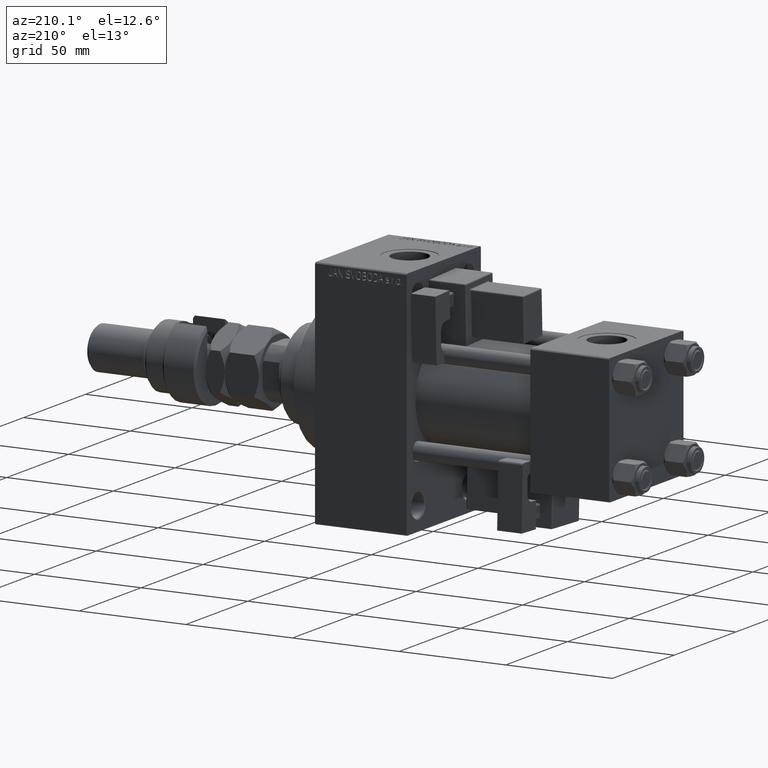
[diagram: clean part render]
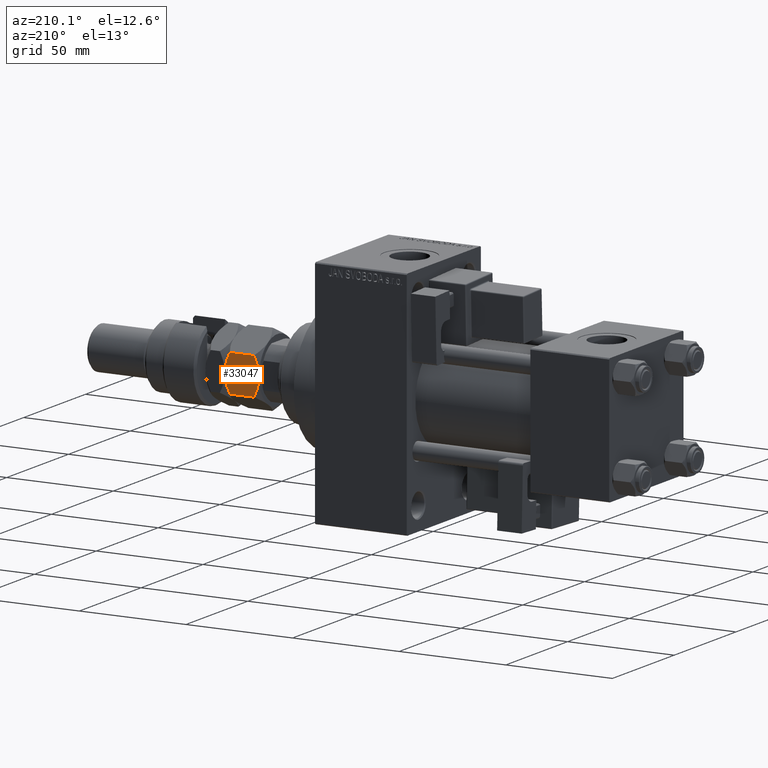
[diagram: same view with one face highlighted and labeled with its STEP entity id]
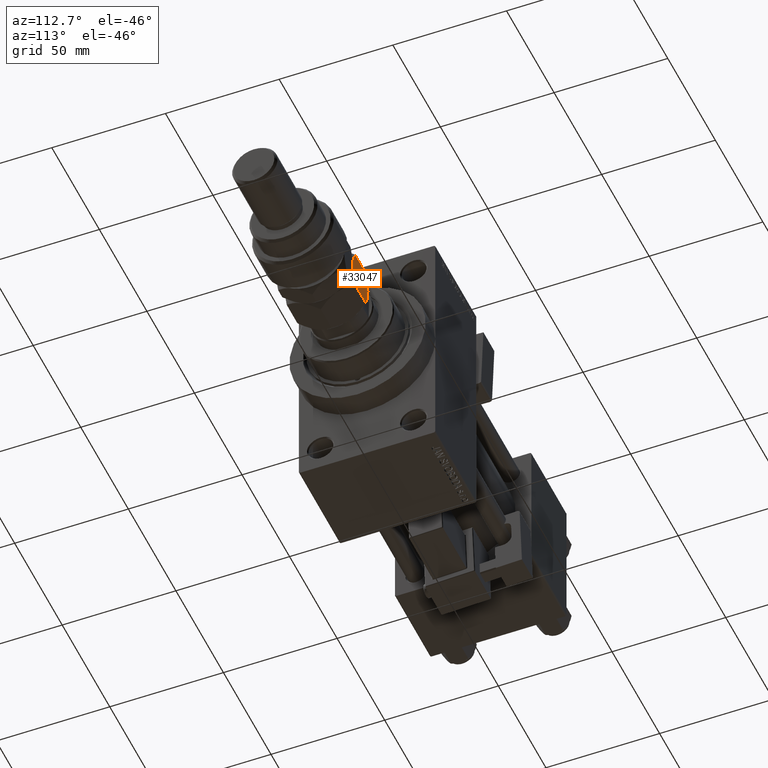
[diagram: same view with one face highlighted and labeled with its STEP entity id]
A machine part, auxiliary view. The second image highlights one B-rep face of the part: STEP entity #33047.
A second angle (auxiliary view) of the same face is appended — the face is thin or edge-on in the first view.
In plain terms, the highlighted planar face has unit normal (0, -1, 0).
Its self-contained STEP definition (entity closure, byte-faithful):
#1314 = VERTEX_POINT ( 'NONE', #2761 ) ;
#1684 = CARTESIAN_POINT ( 'NONE',  ( -12.62116548881249400, 10.03367478323607109, 1.064486067744009556 ) ) ;
#2606 = CARTESIAN_POINT ( 'NONE',  ( -1.176108425306640504, 16.64148155974180199, 14.35851844025821578 ) ) ;
#2761 = CARTESIAN_POINT ( 'NONE',  ( -15.00000000000000000, 8.660254037844394404, 2.320508075688769711 ) ) ;
#5744 = EDGE_CURVE ( 'NONE', #16257, #29692, #31756, .T. ) ;
#8073 = CARTESIAN_POINT ( 'NONE',  ( 3.803331551779305683E-16, 17.32050807568877104, 13.67949192431124317 ) ) ;
#8192 = B_SPLINE_CURVE_WITH_KNOTS ( 'NONE', 3,
 ( #33805, #21057, #1684, #42051, #14165, #21852, #22109, #30339 ),
 .UNSPECIFIED., .F., .F.,
 ( 4, 2, 2, 4 ),
 ( 2.544309033652409006E-07, 0.004488823491893913914, 0.006733108022389184058, 0.008977392552884454202 ),
 .UNSPECIFIED. ) ;
#8611 = ORIENTED_EDGE ( 'NONE', *, *, #32663, .F. ) ;
#9554 = CARTESIAN_POINT ( 'NONE',  ( -7.499999999999991118, 12.99038105676658184, 16.00000000000000000 ) ) ;
#9803 = CARTESIAN_POINT ( 'NONE',  ( -4.247772349543481596, 14.86805556622359070, 15.55242859148697043 ) ) ;
#10841 = CARTESIAN_POINT ( 'NONE',  ( -7.499999999999991118, 12.99038105676658184, 16.00000000000000000 ) ) ;
#11297 = VERTEX_POINT ( 'NONE', #26215 ) ;
#11466 = CARTESIAN_POINT ( 'NONE',  ( -7.499999999999992895, 12.99038105676658361, 0.000000000000000000 ) ) ;
#11556 = ORIENTED_EDGE ( 'NONE', *, *, #5744, .F. ) ;
#12283 = DIRECTION ( 'NONE',  ( 0.8660254037844389297, 0.4999999999999995559, 0.000000000000000000 ) ) ;
#12364 = CARTESIAN_POINT ( 'NONE',  ( 7.621669386706803087E-17, 17.32050807568877104, 2.320508075688761718 ) ) ;
#13059 = DIRECTION ( 'NONE',  ( -0.000000000000000000, -0.000000000000000000, -1.000000000000000000 ) ) ;
#14165 = CARTESIAN_POINT ( 'NONE',  ( -10.11832554202262280, 11.47869010025375403, 0.2838026619462963862 ) ) ;
#14173 = EDGE_CURVE ( 'NONE', #16257, #17763, #32154, .T. ) ;
#14825 = CARTESIAN_POINT ( 'NONE',  ( -6.176419610670691895, 13.75455055083996747, 15.94046462602529957 ) ) ;
#14930 = CARTESIAN_POINT ( 'NONE',  ( -1.174746544192158293, 16.64226784216984356, 1.642267842169780501 ) ) ;
#15740 = VERTEX_POINT ( 'NONE', #32404 ) ;
#16257 = VERTEX_POINT ( 'NONE', #8073 ) ;
#17094 = CARTESIAN_POINT ( 'NONE',  ( -15.00000000000000000, 8.660254037844392627, 16.00000000000000000 ) ) ;
#17763 = VERTEX_POINT ( 'NONE', #12364 ) ;
#18787 = CARTESIAN_POINT ( 'NONE',  ( -2.378834511187503331, 15.94708733029709435, 14.93551393225599710 ) ) ;
#19555 = ORIENTED_EDGE ( 'NONE', *, *, #38104, .F. ) ;
#21057 = CARTESIAN_POINT ( 'NONE',  ( -13.82389157469336283, 9.339280553791375894, 1.641481559741795548 ) ) ;
#21661 = ORIENTED_EDGE ( 'NONE', *, *, #52142, .F. ) ;
#21852 = CARTESIAN_POINT ( 'NONE',  ( -8.823580389329299223, 12.22621156269320863, 0.05953537397470442388 ) ) ;
#22109 = CARTESIAN_POINT ( 'NONE',  ( -8.156876182308247181, 12.61113341608666083, 3.106916850528774038E-15 ) ) ;
#22769 = CARTESIAN_POINT ( 'NONE',  ( 3.803331551779305683E-16, 17.32050807568877104, 13.67949192431124317 ) ) ;
#22881 = CARTESIAN_POINT ( 'NONE',  ( -4.913081180497406386, 14.48393933357811214, 0.2303299219392169472 ) ) ;
#24198 = CARTESIAN_POINT ( 'NONE',  ( 0.000000000000000000, 17.32050807568877104, 16.00000000000000000 ) ) ;
#24279 = ORIENTED_EDGE ( 'NONE', *, *, #14173, .T. ) ;
#25210 = EDGE_LOOP ( 'NONE', ( #21661, #8611, #50357, #11556, #24279, #19555 ) ) ;
#25463 = CARTESIAN_POINT ( 'NONE',  ( -13.82525345580783771, 9.338494271363320109, 14.35773215783021683 ) ) ;
#25584 = DIRECTION ( 'NONE',  ( -0.000000000000000000, -0.000000000000000000, -1.000000000000000000 ) ) ;
#25731 = CARTESIAN_POINT ( 'NONE',  ( -8.804550678576905653, 12.23719837131869781, 16.00000000000000000 ) ) ;
#26215 = CARTESIAN_POINT ( 'NONE',  ( -7.499999999999992895, 12.99038105676658361, 0.000000000000000000 ) ) ;
#27125 = CARTESIAN_POINT ( 'NONE',  ( 7.621669386706803087E-17, 17.32050807568877104, 2.320508075688761718 ) ) ;
#27701 = VECTOR ( 'NONE', #13059, 1000.000000000000000 ) ;
#28436 = AXIS2_PLACEMENT_3D ( 'NONE', #45223, #50483, #12283 ) ;
#28978 = FACE_OUTER_BOUND ( 'NONE', #25210, .T. ) ;
#29692 = VERTEX_POINT ( 'NONE', #50274 ) ;
#29972 = CARTESIAN_POINT ( 'NONE',  ( -12.61607045183964715, 10.03661640420387435, 14.93952096862911816 ) ) ;
#30339 = CARTESIAN_POINT ( 'NONE',  ( -7.499999999999992895, 12.99038105676658361, 0.000000000000000000 ) ) ;
#31756 = B_SPLINE_CURVE_WITH_KNOTS ( 'NONE', 3,
 ( #22769, #2606, #18787, #9803, #51253, #14825, #47255, #10841 ),
 .UNSPECIFIED., .F., .F.,
 ( 4, 2, 2, 4 ),
 ( 2.544309033646407248E-07, 0.004488823491893900036, 0.006733108022389169313, 0.008977392552884438590 ),
 .UNSPECIFIED. ) ;
#31851 = VECTOR ( 'NONE', #25584, 1000.000000000000000 ) ;
#32154 = LINE ( 'NONE', #24198, #27701 ) ;
#32404 = CARTESIAN_POINT ( 'NONE',  ( -15.00000000000000000, 8.660254037844392627, 13.67949192431123429 ) ) ;
#32663 = EDGE_CURVE ( 'NONE', #15740, #1314, #37551, .T. ) ;
#32900 = CARTESIAN_POINT ( 'NONE',  ( -10.08691881950258740, 11.49682277995505864, 15.76967007806078236 ) ) ;
#33047 = ADVANCED_FACE ( 'NONE', ( #28978 ), #36689, .F. ) ;
#33805 = CARTESIAN_POINT ( 'NONE',  ( -15.00000000000000000, 8.660254037844394404, 2.320508075688769711 ) ) ;
#36689 = PLANE ( 'NONE',  #28436 ) ;
#37551 = LINE ( 'NONE', #17094, #31851 ) ;
#38052 = B_SPLINE_CURVE_WITH_KNOTS ( 'NONE', 3,
 ( #9554, #25731, #32900, #29972, #25463, #41684 ),
 .UNSPECIFIED., .F., .F.,
 ( 4, 2, 4 ),
 ( 0.008977392552884438590, 0.01343452311421656012, 0.01789165367554868338 ),
 .UNSPECIFIED. ) ;
#38104 = EDGE_CURVE ( 'NONE', #11297, #17763, #46040, .T. ) ;
#39363 = CARTESIAN_POINT ( 'NONE',  ( -2.383929548160348855, 15.94414570932928576, 1.060479031370877401 ) ) ;
#41684 = CARTESIAN_POINT ( 'NONE',  ( -15.00000000000000000, 8.660254037844392627, 13.67949192431123429 ) ) ;
#42051 = CARTESIAN_POINT ( 'NONE',  ( -10.75222765045650597, 11.11270654730957119, 0.4475714085130295117 ) ) ;
#42381 = EDGE_CURVE ( 'NONE', #29692, #15740, #38052, .T. ) ;
#43096 = CARTESIAN_POINT ( 'NONE',  ( -6.195449321423083688, 13.74356374221447297, 3.003578830963748213E-15 ) ) ;
#45223 = CARTESIAN_POINT ( 'NONE',  ( 0.000000000000000000, 17.32050807568877104, 16.00000000000000000 ) ) ;
#46040 = B_SPLINE_CURVE_WITH_KNOTS ( 'NONE', 3,
 ( #11466, #43096, #22881, #39363, #14930, #27125 ),
 .UNSPECIFIED., .F., .F.,
 ( 4, 2, 4 ),
 ( 0.008977392552884454202, 0.01343452311421656706, 0.01789165367554867991 ),
 .UNSPECIFIED. ) ;
#47255 = CARTESIAN_POINT ( 'NONE',  ( -6.843123817691743938, 13.36962869744650995, 16.00000000000000355 ) ) ;
#50274 = CARTESIAN_POINT ( 'NONE',  ( -7.499999999999991118, 12.99038105676658184, 16.00000000000000000 ) ) ;
#50357 = ORIENTED_EDGE ( 'NONE', *, *, #42381, .F. ) ;
#50483 = DIRECTION ( 'NONE',  ( 0.4999999999999995559, -0.8660254037844389297, 0.000000000000000000 ) ) ;
#51253 = CARTESIAN_POINT ( 'NONE',  ( -4.881674457977373649, 14.50207201327941675, 15.71619733805371055 ) ) ;
#52142 = EDGE_CURVE ( 'NONE', #1314, #11297, #8192, .T. ) ;